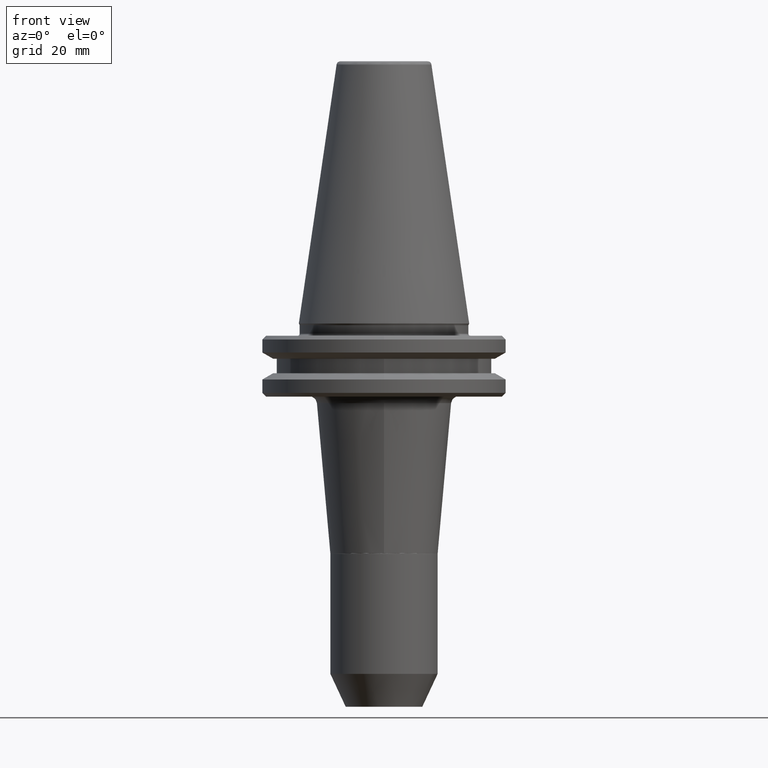
[diagram: clean part render]
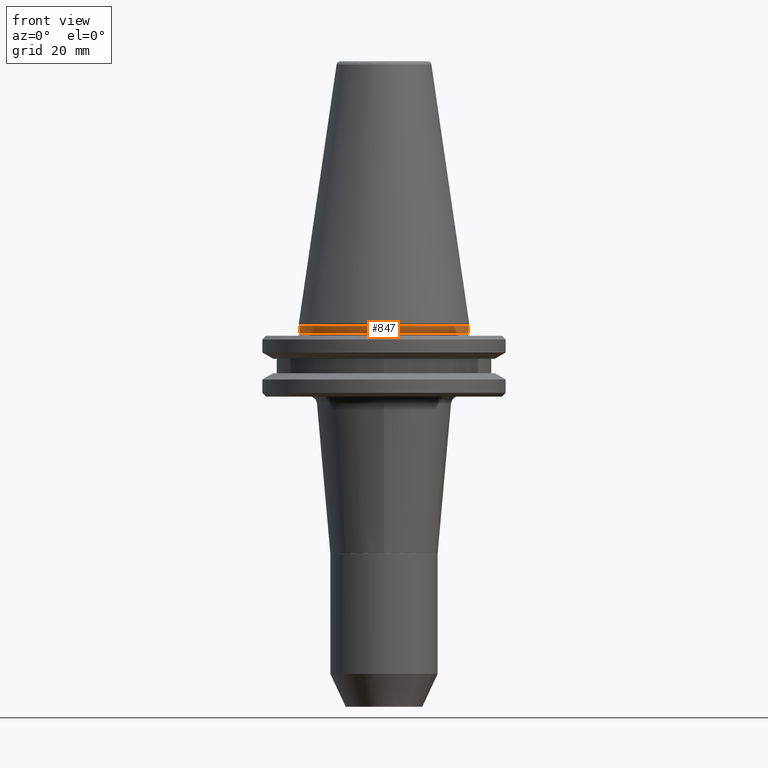
[diagram: same view with one face highlighted and labeled with its STEP entity id]
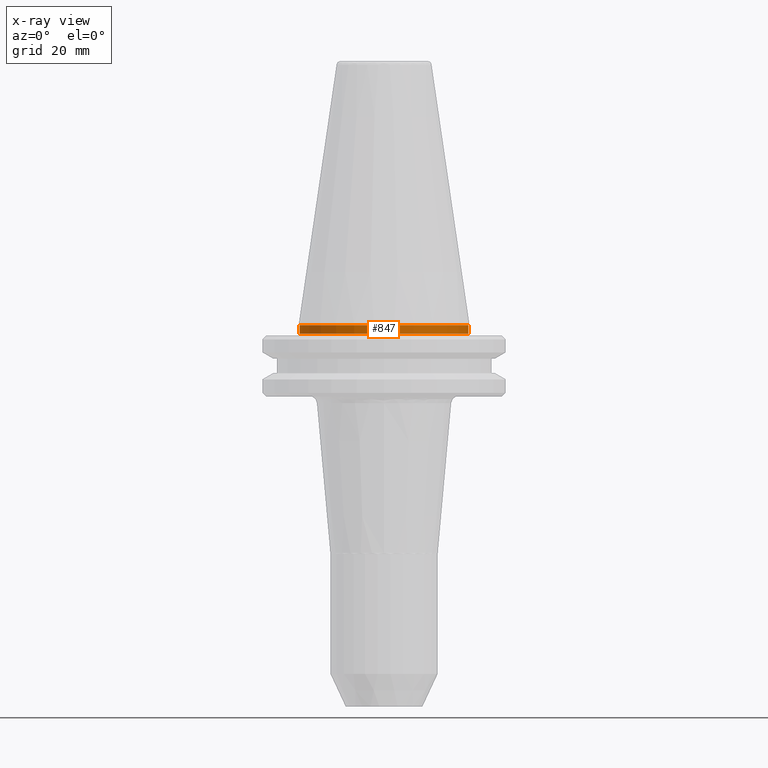
[diagram: x-ray of the same camera — body ghosted, the highlighted face saturated]
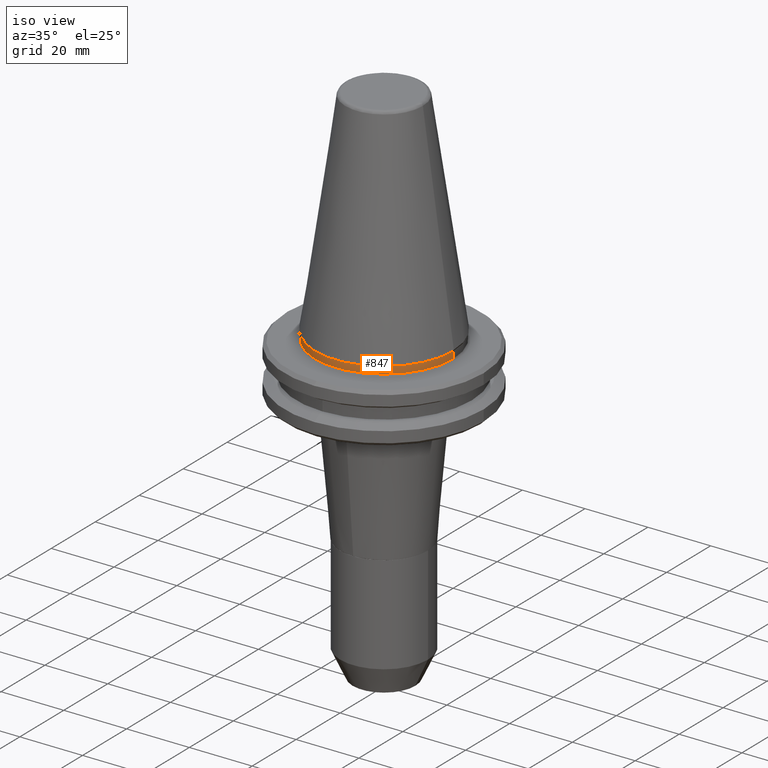
[diagram: same view with one face highlighted and labeled with its STEP entity id]
A machine part, front view. The second image highlights one B-rep face of the part: STEP entity #847.
The next image is the same camera in x-ray: the body ghosted, the highlighted face saturated — about 0% of this face is hidden behind the body in this view.
A second angle (iso view) of the same face is appended — the face is thin or edge-on in the first view.
In plain terms, the highlighted cylindrical surface (partial cylindrical patch) has radius 22 mm, axis along (0, 0, 1).
Its self-contained STEP definition (entity closure, byte-faithful):
#67 = DIRECTION ( 'NONE',  ( 1.000000000000000000, 0.0000000000000000000, 0.0000000000000000000 ) ) ;
#70 = DIRECTION ( 'NONE',  ( 0.0000000000000000000, 0.0000000000000000000, 1.000000000000000000 ) ) ;
#71 = CARTESIAN_POINT ( 'NONE',  ( 0.0000000000000000000, 0.0000000000000000000, -2.700000000557741600 ) ) ;
#164 = ORIENTED_EDGE ( 'NONE', *, *, #1133, .F. ) ;
#167 = DIRECTION ( 'NONE',  ( 0.0000000000000000000, 0.0000000000000000000, 1.000000000000000000 ) ) ;
#221 = ORIENTED_EDGE ( 'NONE', *, *, #455, .T. ) ;
#305 = AXIS2_PLACEMENT_3D ( 'NONE', #839, #838, #836 ) ;
#361 = ORIENTED_EDGE ( 'NONE', *, *, #1523, .T. ) ;
#451 = VERTEX_POINT ( 'NONE', #1390 ) ;
#455 = EDGE_CURVE ( 'NONE', #1113, #873, #1384, .T. ) ;
#485 = CIRCLE ( 'NONE', #1268, 22.00000000000000000 ) ;
#504 = VERTEX_POINT ( 'NONE', #1262 ) ;
#672 = DIRECTION ( 'NONE',  ( 0.0000000000000000000, 0.0000000000000000000, 1.000000000000000000 ) ) ;
#675 = CARTESIAN_POINT ( 'NONE',  ( -22.00000000000000000, 2.694222958124176800E-015, -2.700000000000000200 ) ) ;
#695 = CARTESIAN_POINT ( 'NONE',  ( 21.99999999986690500, 0.0000000000000000000, -2.700000000557789100 ) ) ;
#836 = DIRECTION ( 'NONE',  ( 1.000000000000000000, 0.0000000000000000000, 2.464095846557964700E-017 ) ) ;
#838 = DIRECTION ( 'NONE',  ( 0.0000000000000000000, 0.0000000000000000000, 1.000000000000000000 ) ) ;
#839 = CARTESIAN_POINT ( 'NONE',  ( 0.0000000000000000000, 0.0000000000000000000, -0.4825140569999983300 ) ) ;
#847 = ADVANCED_FACE ( 'NONE', ( #1426 ), #1297, .T. ) ;
#873 = VERTEX_POINT ( 'NONE', #1185 ) ;
#913 = AXIS2_PLACEMENT_3D ( 'NONE', #1202, #167, #1275 ) ;
#1009 = EDGE_CURVE ( 'NONE', #504, #873, #1277, .T. ) ;
#1113 = VERTEX_POINT ( 'NONE', #695 ) ;
#1133 = EDGE_CURVE ( 'NONE', #451, #504, #1503, .T. ) ;
#1185 = CARTESIAN_POINT ( 'NONE',  ( 22.00000000000000000, 0.0000000000000000000, -0.4825140569999982800 ) ) ;
#1202 = CARTESIAN_POINT ( 'NONE',  ( 0.0000000000000000000, 0.0000000000000000000, -2.700000000000000200 ) ) ;
#1245 = EDGE_LOOP ( 'NONE', ( #164, #361, #221, #1445 ) ) ;
#1262 = CARTESIAN_POINT ( 'NONE',  ( -22.00000000000000000, 2.694222958124176800E-015, -0.4825140569999982800 ) ) ;
#1268 = AXIS2_PLACEMENT_3D ( 'NONE', #71, #70, #67 ) ;
#1275 = DIRECTION ( 'NONE',  ( 1.000000000000000000, 0.0000000000000000000, 0.0000000000000000000 ) ) ;
#1277 = CIRCLE ( 'NONE', #305, 22.00000000000000000 ) ;
#1297 = CYLINDRICAL_SURFACE ( 'NONE', #913, 22.00000000000000000 ) ;
#1321 = DIRECTION ( 'NONE',  ( 0.0000000000000000000, 0.0000000000000000000, 1.000000000000000000 ) ) ;
#1350 = CARTESIAN_POINT ( 'NONE',  ( 22.00000000000000000, 0.0000000000000000000, -2.700000000000000200 ) ) ;
#1380 = VECTOR ( 'NONE', #1321, 1000.000000000000000 ) ;
#1384 = LINE ( 'NONE', #1350, #1380 ) ;
#1390 = CARTESIAN_POINT ( 'NONE',  ( -21.99999999993344700, -1.128067172944972500E-009, -2.700000000557765600 ) ) ;
#1426 = FACE_OUTER_BOUND ( 'NONE', #1245, .T. ) ;
#1445 = ORIENTED_EDGE ( 'NONE', *, *, #1009, .F. ) ;
#1480 = VECTOR ( 'NONE', #672, 1000.000000000000000 ) ;
#1503 = LINE ( 'NONE', #675, #1480 ) ;
#1523 = EDGE_CURVE ( 'NONE', #451, #1113, #485, .T. ) ;